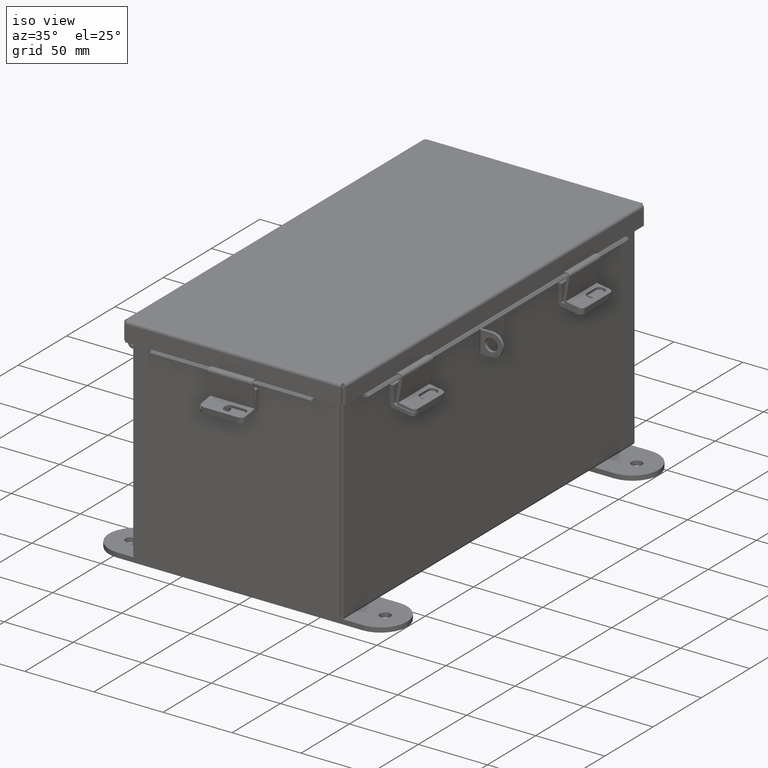
[diagram: clean part render]
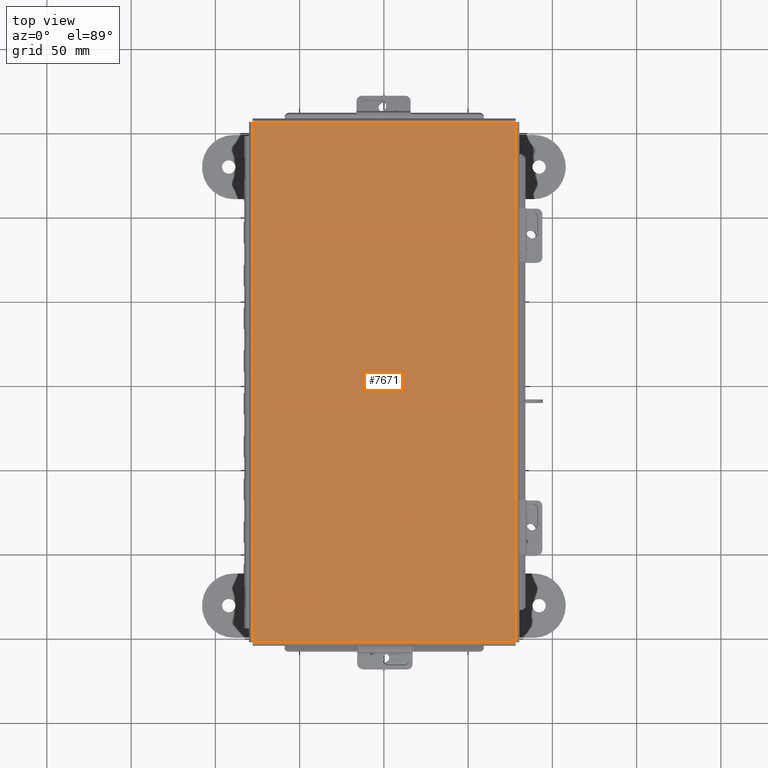
[diagram: tour spotlight — one face highlighted and labeled with its STEP entity id]
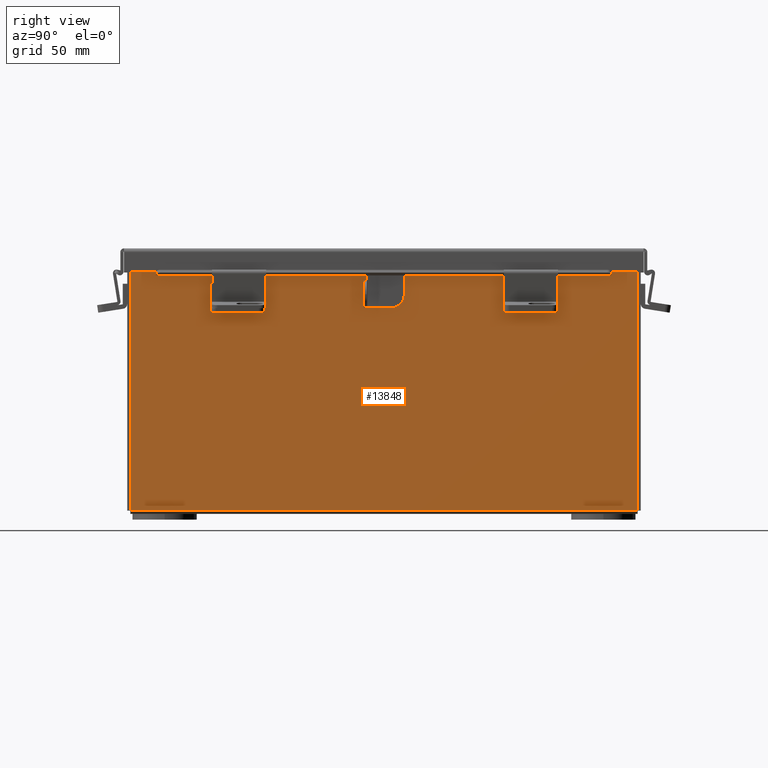
[diagram: tour spotlight — one face highlighted and labeled with its STEP entity id]
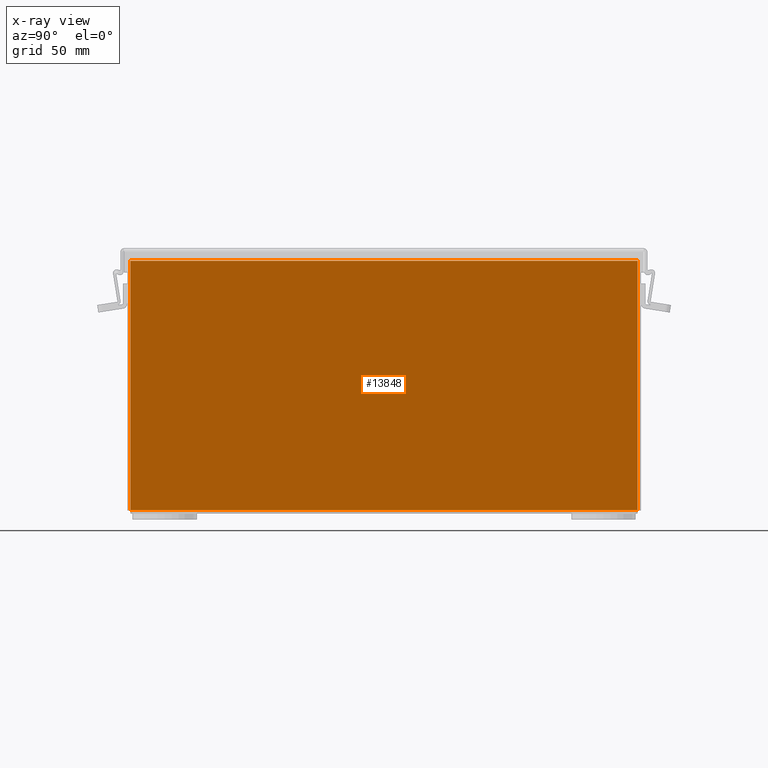
[diagram: x-ray of the same camera — body ghosted, this tour face saturated]
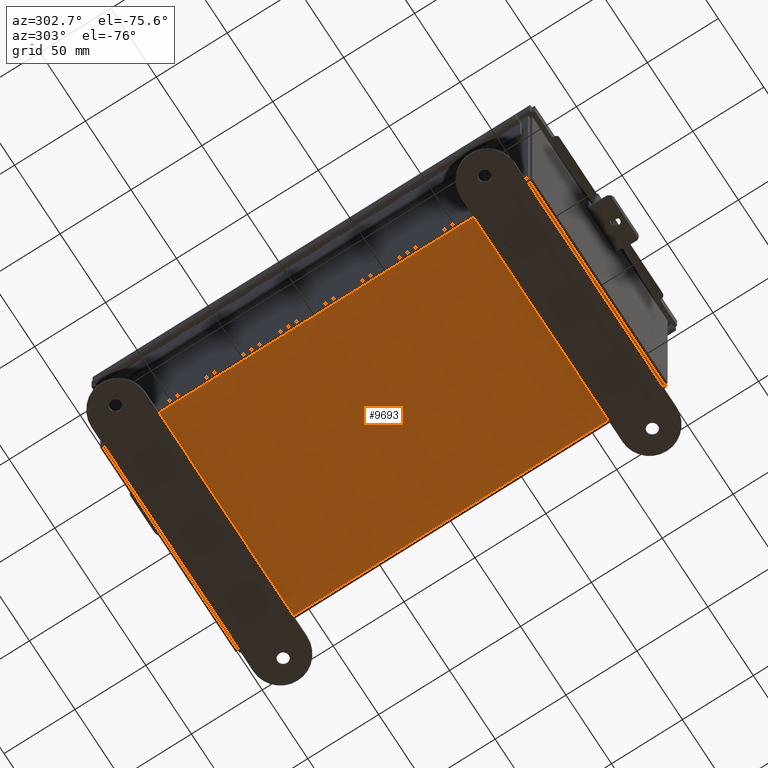
[diagram: tour spotlight — one face highlighted and labeled with its STEP entity id]
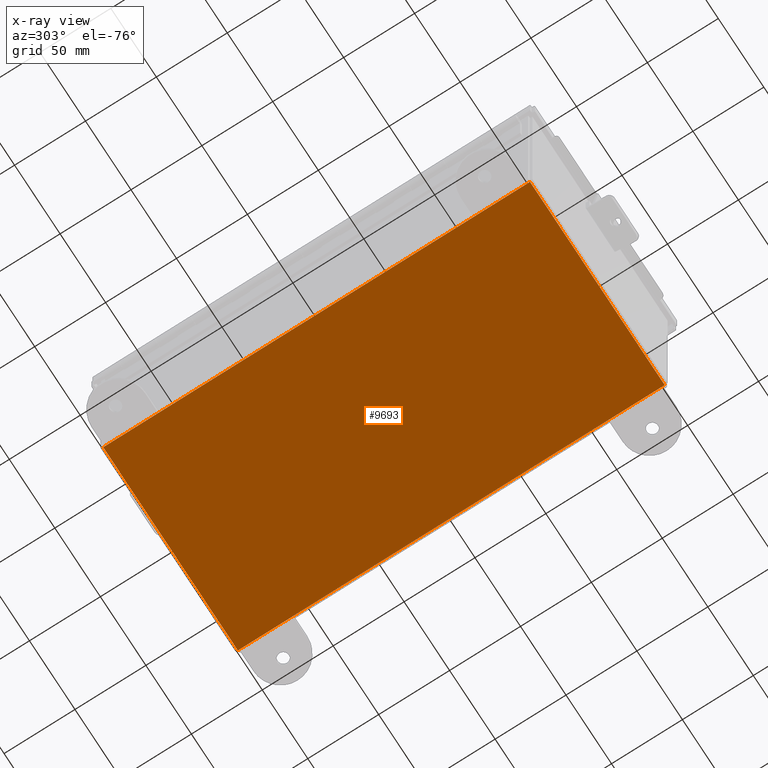
[diagram: x-ray of the same camera — body ghosted, this tour face saturated]
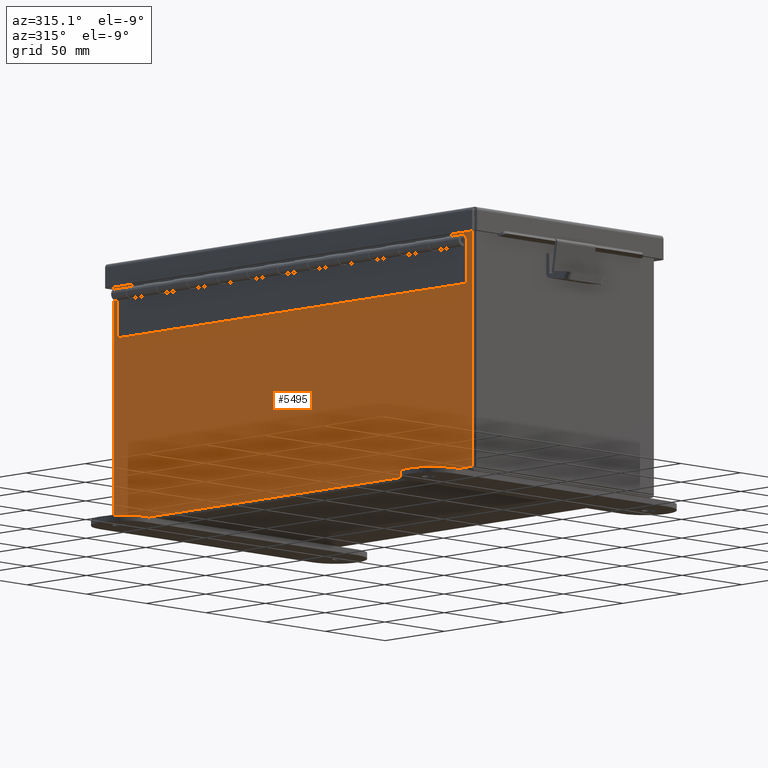
[diagram: tour spotlight — one face highlighted and labeled with its STEP entity id]
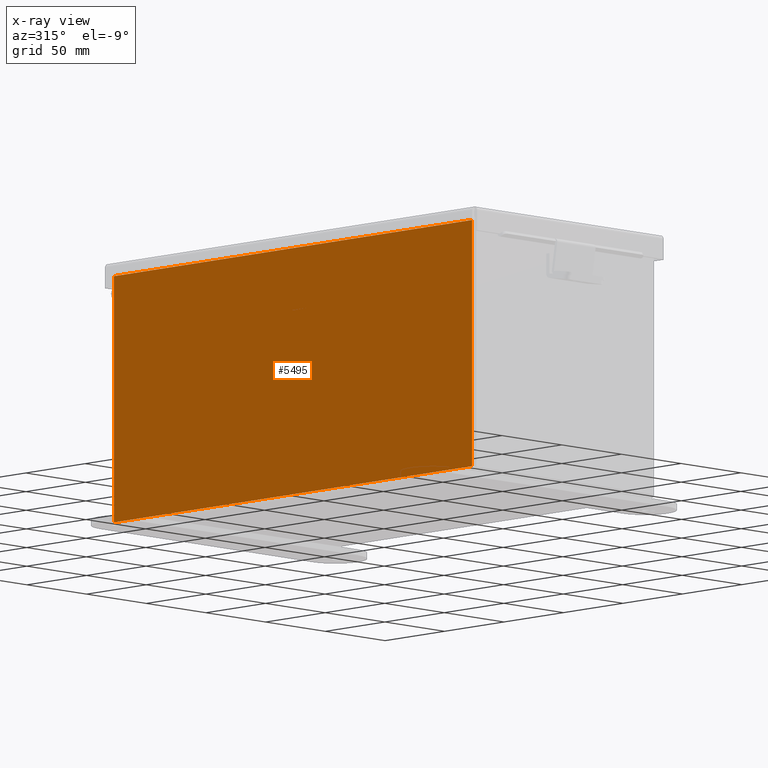
[diagram: x-ray of the same camera — body ghosted, this tour face saturated]
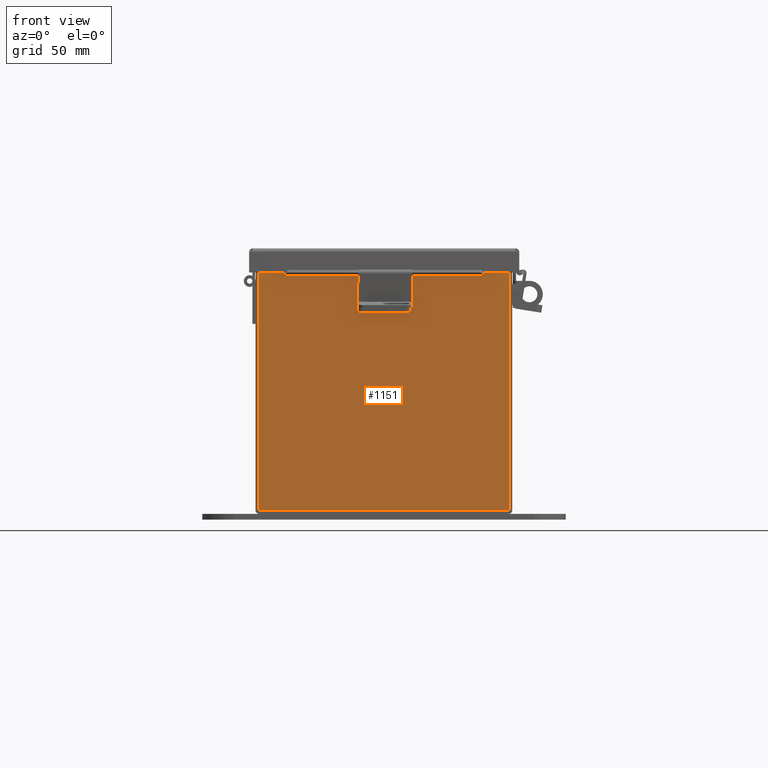
[diagram: tour spotlight — one face highlighted and labeled with its STEP entity id]
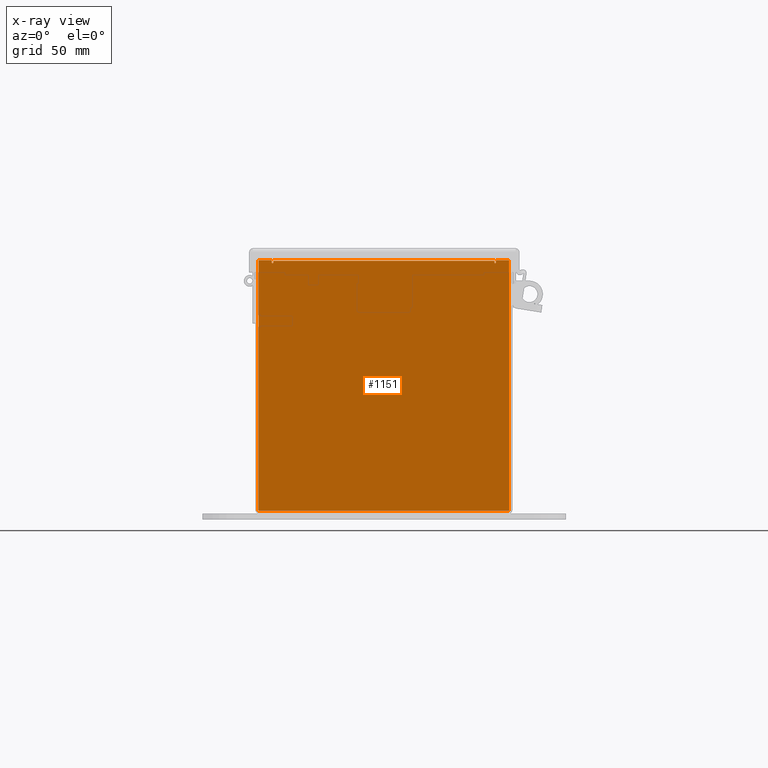
[diagram: x-ray of the same camera — body ghosted, this tour face saturated]
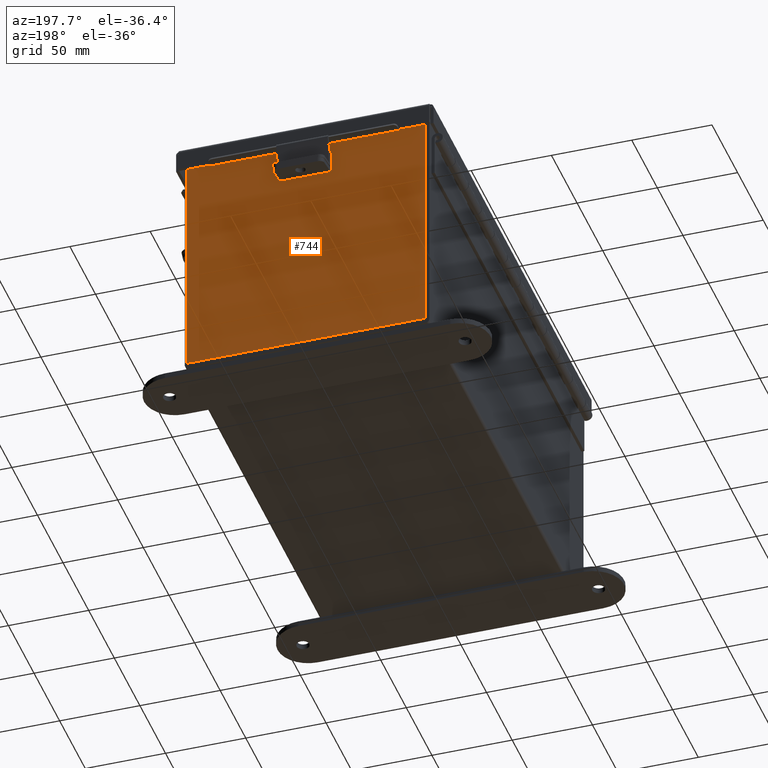
[diagram: tour spotlight — one face highlighted and labeled with its STEP entity id]
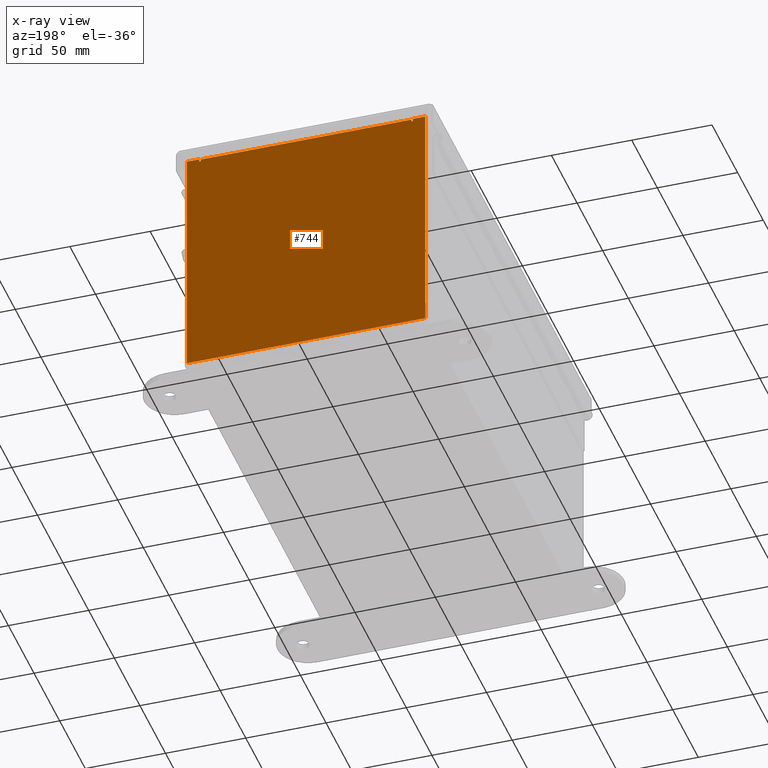
[diagram: x-ray of the same camera — body ghosted, this tour face saturated]
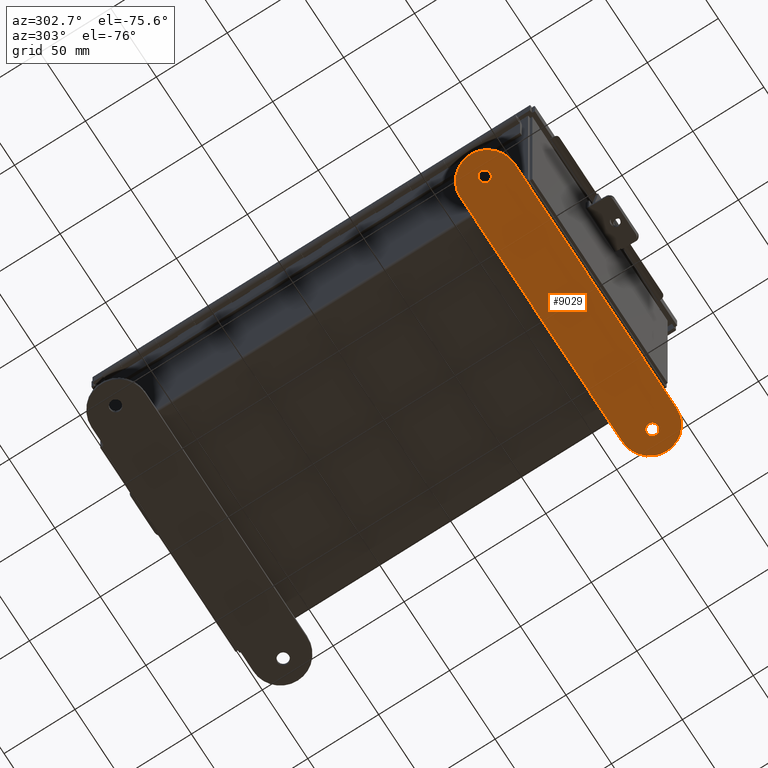
[diagram: tour spotlight — one face highlighted and labeled with its STEP entity id]
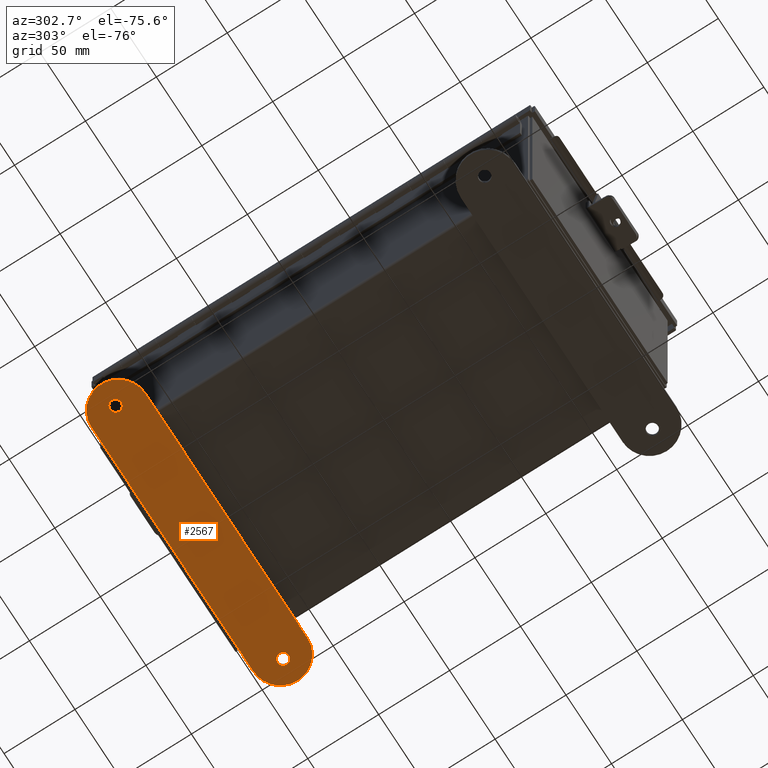
[diagram: tour spotlight — one face highlighted and labeled with its STEP entity id]
A machine part: a face-by-face anatomy tour. The part has 624 B-rep faces; the first image is the clean iso view, then the 8 largest visible faces are spotlighted one at a time (largest first), each with its STEP entity span.

Face 1 — top view, entity #7671. In plain terms, the highlighted planar face has unit normal (-0, -0, 1).
Definition (entity closure, byte-faithful):
#88 = VECTOR ( 'NONE', #4836, 39.37007874015748100 ) ;
#145 = LINE ( 'NONE', #8751, #15312 ) ;
#352 = FACE_OUTER_BOUND ( 'NONE', #9481, .T. ) ;
#463 = VECTOR ( 'NONE', #9300, 39.37007874015748100 ) ;
#794 = CARTESIAN_POINT ( 'NONE',  ( 1.920830620545185200E-017, 0.0000000000000000000, -0.07470000000000015500 ) ) ;
#1762 = PLANE ( 'NONE',  #2698 ) ;
#2108 = CARTESIAN_POINT ( 'NONE',  ( 3.068550000000020100, 6.074478932188135600, -0.07470000000000015500 ) ) ;
#2698 = AXIS2_PLACEMENT_3D ( 'NONE', #794, #5830, #8805 ) ;
#3177 = ORIENTED_EDGE ( 'NONE', *, *, #8562, .T. ) ;
#3400 = EDGE_CURVE ( 'NONE', #8075, #11957, #3712, .T. ) ;
#3712 = LINE ( 'NONE', #2108, #463 ) ;
#4008 = DIRECTION ( 'NONE',  ( 6.697214100988701600E-031, 1.000000000000000000, 3.106139814307734000E-029 ) ) ;
#4836 = DIRECTION ( 'NONE',  ( -1.000000000000000000, -8.669366364039002200E-031, -7.888609052210055000E-031 ) ) ;
#5056 = CARTESIAN_POINT ( 'NONE',  ( -3.068550000000018800, -6.068550000000000100, -0.07470000000000015500 ) ) ;
#5345 = ORIENTED_EDGE ( 'NONE', *, *, #3400, .T. ) ;
#5830 = DIRECTION ( 'NONE',  ( 7.888609052210055000E-031, -3.091348672334815300E-029, -1.000000000000000000 ) ) ;
#5929 = ORIENTED_EDGE ( 'NONE', *, *, #9044, .T. ) ;
#6172 = CARTESIAN_POINT ( 'NONE',  ( -3.074478932188156000, 6.068550000000000100, -0.07470000000000015500 ) ) ;
#6266 = DIRECTION ( 'NONE',  ( 1.000000000000000000, 8.669366364039002200E-031, 7.888609052210055000E-031 ) ) ;
#6812 = ORIENTED_EDGE ( 'NONE', *, *, #13797, .T. ) ;
#7380 = LINE ( 'NONE', #13774, #88 ) ;
#7639 = VERTEX_POINT ( 'NONE', #5056 ) ;
#7671 = ADVANCED_FACE ( 'NONE', ( #352 ), #1762, .T. ) ;
#7797 = CARTESIAN_POINT ( 'NONE',  ( 3.068550000000020100, 6.068550000000000100, -0.07470000000000015500 ) ) ;
#7931 = VERTEX_POINT ( 'NONE', #9531 ) ;
#8075 = VERTEX_POINT ( 'NONE', #7797 ) ;
#8562 = EDGE_CURVE ( 'NONE', #7931, #8075, #14592, .T. ) ;
#8751 = CARTESIAN_POINT ( 'NONE',  ( -3.068550000000018800, -6.074478932188137400, -0.07470000000000015500 ) ) ;
#8805 = DIRECTION ( 'NONE',  ( -1.000000000000000000, -8.669366364039003900E-031, -7.888609052210055000E-031 ) ) ;
#9044 = EDGE_CURVE ( 'NONE', #11957, #7639, #7380, .T. ) ;
#9060 = CARTESIAN_POINT ( 'NONE',  ( 3.068550000000020500, -6.068550000000000100, -0.07470000000000015500 ) ) ;
#9300 = DIRECTION ( 'NONE',  ( -6.697214100988701600E-031, -1.000000000000000000, -3.106139814307734000E-029 ) ) ;
#9481 = EDGE_LOOP ( 'NONE', ( #3177, #5345, #5929, #6812 ) ) ;
#9531 = CARTESIAN_POINT ( 'NONE',  ( -3.068550000000019200, 6.068550000000000100, -0.07470000000000015500 ) ) ;
#11444 = VECTOR ( 'NONE', #6266, 39.37007874015748100 ) ;
#11957 = VERTEX_POINT ( 'NONE', #9060 ) ;
#13774 = CARTESIAN_POINT ( 'NONE',  ( 3.074478932188156900, -6.068550000000000100, -0.07470000000000015500 ) ) ;
#13797 = EDGE_CURVE ( 'NONE', #7639, #7931, #145, .T. ) ;
#14592 = LINE ( 'NONE', #6172, #11444 ) ;
#15312 = VECTOR ( 'NONE', #4008, 39.37007874015748100 ) ;

Face 2 — right view, entity #13848. An x-ray twin of the same camera follows (body ghosted, this face saturated) — the face is partly hidden behind the body. In plain terms, the highlighted planar face has unit normal (-1, 0, 0).
Definition (entity closure, byte-faithful):
#500 = CARTESIAN_POINT ( 'NONE',  ( 3.000000000000018700, 5.925299999999997300, 5.837600000000000100 ) ) ;
#756 = VECTOR ( 'NONE', #6280, 39.37007874015748100 ) ;
#1047 = AXIS2_PLACEMENT_3D ( 'NONE', #2891, #4121, #12479 ) ;
#1886 = DIRECTION ( 'NONE',  ( -1.593066959076850500E-031, -1.000000000000000000, -4.610480471308228800E-017 ) ) ;
#2836 = LINE ( 'NONE', #3128, #12031 ) ;
#2891 = CARTESIAN_POINT ( 'NONE',  ( 2.999999999999999600, 0.0000000000000000000, -1.062859610035002400E-014 ) ) ;
#3128 = CARTESIAN_POINT ( 'NONE',  ( 3.000000000000018700, 5.925299999999998200, 5.837600000000000100 ) ) ;
#3207 = VERTEX_POINT ( 'NONE', #5413 ) ;
#3893 = VERTEX_POINT ( 'NONE', #13418 ) ;
#4121 = DIRECTION ( 'NONE',  ( -1.000000000000000000, 0.0000000000000000000, 3.455316574900958600E-015 ) ) ;
#4945 = CARTESIAN_POINT ( 'NONE',  ( 2.999999999999999600, -5.925300000000000000, 0.01299999999999963700 ) ) ;
#5266 = VERTEX_POINT ( 'NONE', #500 ) ;
#5413 = CARTESIAN_POINT ( 'NONE',  ( 3.000000000000020000, -5.925300000000000000, 5.837600000000000100 ) ) ;
#5654 = VECTOR ( 'NONE', #1886, 39.37007874015748100 ) ;
#6280 = DIRECTION ( 'NONE',  ( -3.455316574900958600E-015, 0.0000000000000000000, -1.000000000000000000 ) ) ;
#6682 = ORIENTED_EDGE ( 'NONE', *, *, #7249, .T. ) ;
#7249 = EDGE_CURVE ( 'NONE', #5266, #3207, #2836, .T. ) ;
#7267 = EDGE_CURVE ( 'NONE', #3893, #15014, #15166, .T. ) ;
#7435 = CARTESIAN_POINT ( 'NONE',  ( 2.999999999999999600, -5.925300000000000000, -1.062859610035002400E-014 ) ) ;
#7891 = CARTESIAN_POINT ( 'NONE',  ( 2.999999999999999600, -5.925300000000000000, 0.01299999999999984300 ) ) ;
#8434 = LINE ( 'NONE', #12896, #14420 ) ;
#8846 = ORIENTED_EDGE ( 'NONE', *, *, #7267, .F. ) ;
#10112 = PLANE ( 'NONE',  #1047 ) ;
#10871 = ORIENTED_EDGE ( 'NONE', *, *, #14105, .T. ) ;
#11035 = EDGE_LOOP ( 'NONE', ( #6682, #14718, #8846, #10871 ) ) ;
#11824 = FACE_OUTER_BOUND ( 'NONE', #11035, .T. ) ;
#12031 = VECTOR ( 'NONE', #13870, 39.37007874015748100 ) ;
#12463 = EDGE_CURVE ( 'NONE', #3207, #15014, #13519, .T. ) ;
#12479 = DIRECTION ( 'NONE',  ( 3.455316574900958600E-015, 0.0000000000000000000, 1.000000000000000000 ) ) ;
#12896 = CARTESIAN_POINT ( 'NONE',  ( 2.999999999999999600, 5.925300000000000000, -9.518782852923917600E-015 ) ) ;
#13418 = CARTESIAN_POINT ( 'NONE',  ( 2.999999999999999600, 5.925299999999998200, 0.01300000000000039000 ) ) ;
#13519 = LINE ( 'NONE', #7435, #756 ) ;
#13848 = ADVANCED_FACE ( 'NONE', ( #11824 ), #10112, .F. ) ;
#13870 = DIRECTION ( 'NONE',  ( -0.0000000000000000000, -1.000000000000000000, -0.0000000000000000000 ) ) ;
#14087 = DIRECTION ( 'NONE',  ( 3.455316574900958600E-015, -1.867738689135653700E-016, 1.000000000000000000 ) ) ;
#14105 = EDGE_CURVE ( 'NONE', #3893, #5266, #8434, .T. ) ;
#14420 = VECTOR ( 'NONE', #14087, 39.37007874015748100 ) ;
#14718 = ORIENTED_EDGE ( 'NONE', *, *, #12463, .T. ) ;
#15014 = VERTEX_POINT ( 'NONE', #4945 ) ;
#15166 = LINE ( 'NONE', #7891, #5654 ) ;

Face 3 — auxiliary view, entity #9693. An x-ray twin of the same camera follows (body ghosted, this face saturated) — the face is partly hidden behind the body. In plain terms, the highlighted planar face has unit normal (0, 0, -1).
Definition (entity closure, byte-faithful):
#335 = CARTESIAN_POINT ( 'NONE',  ( 2.912299999999999200, -5.925300000000000000, -0.07470000000000000300 ) ) ;
#430 = DIRECTION ( 'NONE',  ( -1.000000000000000000, 0.0000000000000000000, -0.0000000000000000000 ) ) ;
#927 = VERTEX_POINT ( 'NONE', #6444 ) ;
#1824 = ORIENTED_EDGE ( 'NONE', *, *, #3911, .F. ) ;
#2106 = DIRECTION ( 'NONE',  ( 0.0000000000000000000, 0.0000000000000000000, -1.000000000000000000 ) ) ;
#2914 = EDGE_LOOP ( 'NONE', ( #13696, #9488, #1824, #13502 ) ) ;
#2961 = CARTESIAN_POINT ( 'NONE',  ( 0.0000000000000000000, 0.0000000000000000000, -0.07470000000000000300 ) ) ;
#3535 = CARTESIAN_POINT ( 'NONE',  ( -2.912300000000000600, -5.925299999999998200, -0.07470000000000071000 ) ) ;
#3814 = DIRECTION ( 'NONE',  ( -0.0000000000000000000, -1.000000000000000000, -8.208677865577646300E-017 ) ) ;
#3911 = EDGE_CURVE ( 'NONE', #5042, #5277, #4066, .T. ) ;
#4066 = LINE ( 'NONE', #4734, #13228 ) ;
#4194 = LINE ( 'NONE', #6628, #7722 ) ;
#4734 = CARTESIAN_POINT ( 'NONE',  ( -3.000000000000000900, -5.925300000000000000, -0.07470000000000000300 ) ) ;
#5042 = VERTEX_POINT ( 'NONE', #3535 ) ;
#5216 = VERTEX_POINT ( 'NONE', #7066 ) ;
#5277 = VERTEX_POINT ( 'NONE', #335 ) ;
#5617 = VECTOR ( 'NONE', #3814, 39.37007874015748100 ) ;
#6444 = CARTESIAN_POINT ( 'NONE',  ( -2.912300000000000600, 5.925300000000000000, -0.07470000000000000300 ) ) ;
#6628 = CARTESIAN_POINT ( 'NONE',  ( -3.000000000000000900, 5.925300000000000000, -0.07470000000000000300 ) ) ;
#7056 = FACE_OUTER_BOUND ( 'NONE', #2914, .T. ) ;
#7066 = CARTESIAN_POINT ( 'NONE',  ( 2.912299999999999200, 5.925299999999997300, -0.07469999999999918400 ) ) ;
#7436 = AXIS2_PLACEMENT_3D ( 'NONE', #2961, #2106, #430 ) ;
#7533 = PLANE ( 'NONE',  #7436 ) ;
#7722 = VECTOR ( 'NONE', #10689, 39.37007874015748100 ) ;
#7910 = CARTESIAN_POINT ( 'NONE',  ( 2.912299999999999200, 5.925300000000000000, -0.07469999999999918400 ) ) ;
#7974 = CARTESIAN_POINT ( 'NONE',  ( -2.912300000000000600, -5.925300000000000000, -0.07470000000000071000 ) ) ;
#7996 = DIRECTION ( 'NONE',  ( -0.0000000000000000000, 1.000000000000000000, 8.208677865577646300E-017 ) ) ;
#8151 = LINE ( 'NONE', #7974, #14137 ) ;
#8789 = LINE ( 'NONE', #7910, #5617 ) ;
#8816 = EDGE_CURVE ( 'NONE', #5216, #5277, #8789, .T. ) ;
#9488 = ORIENTED_EDGE ( 'NONE', *, *, #8816, .T. ) ;
#9693 = ADVANCED_FACE ( 'NONE', ( #7056 ), #7533, .T. ) ;
#10689 = DIRECTION ( 'NONE',  ( -1.000000000000000000, -0.0000000000000000000, -0.0000000000000000000 ) ) ;
#11082 = EDGE_CURVE ( 'NONE', #5042, #927, #8151, .T. ) ;
#12183 = EDGE_CURVE ( 'NONE', #5216, #927, #4194, .T. ) ;
#13123 = DIRECTION ( 'NONE',  ( 1.000000000000000000, 0.0000000000000000000, 0.0000000000000000000 ) ) ;
#13228 = VECTOR ( 'NONE', #13123, 39.37007874015748100 ) ;
#13502 = ORIENTED_EDGE ( 'NONE', *, *, #11082, .T. ) ;
#13696 = ORIENTED_EDGE ( 'NONE', *, *, #12183, .F. ) ;
#14137 = VECTOR ( 'NONE', #7996, 39.37007874015748100 ) ;

Face 4 — auxiliary view, entity #5495. An x-ray twin of the same camera follows (body ghosted, this face saturated) — the face is partly hidden behind the body. In plain terms, the highlighted planar face has unit normal (1, 0, 0).
Definition (entity closure, byte-faithful):
#283 = AXIS2_PLACEMENT_3D ( 'NONE', #1407, #4591, #9851 ) ;
#616 = CARTESIAN_POINT ( 'NONE',  ( -3.000000000000000900, 5.925300000000000000, -1.062859610035002400E-014 ) ) ;
#1009 = VERTEX_POINT ( 'NONE', #11117 ) ;
#1040 = EDGE_LOOP ( 'NONE', ( #7972, #6188, #13054, #3330 ) ) ;
#1100 = EDGE_CURVE ( 'NONE', #1009, #10900, #9626, .T. ) ;
#1407 = CARTESIAN_POINT ( 'NONE',  ( -3.000000000000000900, 0.0000000000000000000, -1.062859610035002400E-014 ) ) ;
#1613 = CARTESIAN_POINT ( 'NONE',  ( -3.000000000000000900, -5.925299999999998200, 0.01299999999999929700 ) ) ;
#1750 = DIRECTION ( 'NONE',  ( 0.0000000000000000000, 1.000000000000000000, 0.0000000000000000000 ) ) ;
#1893 = DIRECTION ( 'NONE',  ( 3.455316574900958600E-015, 0.0000000000000000000, -1.000000000000000000 ) ) ;
#2325 = FACE_OUTER_BOUND ( 'NONE', #1040, .T. ) ;
#2864 = CARTESIAN_POINT ( 'NONE',  ( -3.000000000000000900, 5.925300000000000000, 0.01299999999999984300 ) ) ;
#3330 = ORIENTED_EDGE ( 'NONE', *, *, #9770, .T. ) ;
#3947 = CARTESIAN_POINT ( 'NONE',  ( -3.000000000000020900, 5.925300000000000000, 5.837599999999999200 ) ) ;
#4591 = DIRECTION ( 'NONE',  ( 1.000000000000000000, 0.0000000000000000000, 3.455316574900958600E-015 ) ) ;
#5495 = ADVANCED_FACE ( 'NONE', ( #2325 ), #9587, .F. ) ;
#5550 = LINE ( 'NONE', #8312, #12305 ) ;
#6188 = ORIENTED_EDGE ( 'NONE', *, *, #10325, .T. ) ;
#6222 = LINE ( 'NONE', #2864, #12226 ) ;
#7223 = VECTOR ( 'NONE', #1893, 39.37007874015748100 ) ;
#7972 = ORIENTED_EDGE ( 'NONE', *, *, #1100, .T. ) ;
#8312 = CARTESIAN_POINT ( 'NONE',  ( -3.000000000000000900, -5.925300000000000000, -9.518782852923917600E-015 ) ) ;
#9046 = VECTOR ( 'NONE', #1750, 39.37007874015748100 ) ;
#9367 = CARTESIAN_POINT ( 'NONE',  ( -3.000000000000000900, 5.925300000000000000, 0.01300000000000006500 ) ) ;
#9394 = DIRECTION ( 'NONE',  ( -3.455316574900958600E-015, 1.867738689135653700E-016, 1.000000000000000000 ) ) ;
#9587 = PLANE ( 'NONE',  #283 ) ;
#9626 = LINE ( 'NONE', #11270, #9046 ) ;
#9770 = EDGE_CURVE ( 'NONE', #13816, #1009, #5550, .T. ) ;
#9851 = DIRECTION ( 'NONE',  ( 3.455316574900958600E-015, 0.0000000000000000000, -1.000000000000000000 ) ) ;
#10325 = EDGE_CURVE ( 'NONE', #10900, #11173, #13590, .T. ) ;
#10900 = VERTEX_POINT ( 'NONE', #3947 ) ;
#11117 = CARTESIAN_POINT ( 'NONE',  ( -3.000000000000021800, -5.925299999999997300, 5.837599999999999200 ) ) ;
#11173 = VERTEX_POINT ( 'NONE', #9367 ) ;
#11270 = CARTESIAN_POINT ( 'NONE',  ( -3.000000000000021800, -5.925299999999998200, 5.837599999999999200 ) ) ;
#12226 = VECTOR ( 'NONE', #12824, 39.37007874015748100 ) ;
#12298 = EDGE_CURVE ( 'NONE', #13816, #11173, #6222, .T. ) ;
#12305 = VECTOR ( 'NONE', #9394, 39.37007874015748100 ) ;
#12824 = DIRECTION ( 'NONE',  ( -1.593066959076850500E-031, 1.000000000000000000, 4.610480471308228800E-017 ) ) ;
#13054 = ORIENTED_EDGE ( 'NONE', *, *, #12298, .F. ) ;
#13590 = LINE ( 'NONE', #616, #7223 ) ;
#13816 = VERTEX_POINT ( 'NONE', #1613 ) ;

Face 5 — front view, entity #1151. An x-ray twin of the same camera follows (body ghosted, this face saturated) — the face is partly hidden behind the body. In plain terms, the highlighted planar face has unit normal (-0, 1, -0).
Definition (entity closure, byte-faithful):
#61 = CARTESIAN_POINT ( 'NONE',  ( -2.925300000000008400, 0.0000000000000000000, -2.925300000000000500 ) ) ;
#271 = DIRECTION ( 'NONE',  ( 0.0000000000000000000, 0.0000000000000000000, 1.000000000000000000 ) ) ;
#454 = ORIENTED_EDGE ( 'NONE', *, *, #9184, .T. ) ;
#718 = VECTOR ( 'NONE', #7282, 39.37007874015748100 ) ;
#769 = CARTESIAN_POINT ( 'NONE',  ( 2.619650000000001800, 0.0000000000000000000, 2.925299999999999600 ) ) ;
#809 = VERTEX_POINT ( 'NONE', #3852 ) ;
#1151 = ADVANCED_FACE ( 'NONE', ( #12037 ), #15282, .F. ) ;
#1405 = CARTESIAN_POINT ( 'NONE',  ( -2.582299999999998300, 1.092739197465705300E-015, 2.912300000000000600 ) ) ;
#1591 = VERTEX_POINT ( 'NONE', #12738 ) ;
#1754 = LINE ( 'NONE', #6164, #14146 ) ;
#1790 = CARTESIAN_POINT ( 'NONE',  ( -2.582299999999998300, 0.0000000000000000000, 0.0000000000000000000 ) ) ;
#2175 = DIRECTION ( 'NONE',  ( 1.000000000000000000, 1.107301242518083700E-030, 0.0000000000000000000 ) ) ;
#2445 = VERTEX_POINT ( 'NONE', #769 ) ;
#2575 = ORIENTED_EDGE ( 'NONE', *, *, #15212, .F. ) ;
#2626 = VECTOR ( 'NONE', #14962, 39.37007874015748100 ) ;
#2670 = EDGE_CURVE ( 'NONE', #2445, #13265, #5194, .T. ) ;
#2774 = AXIS2_PLACEMENT_3D ( 'NONE', #15380, #7162, #5509 ) ;
#3022 = LINE ( 'NONE', #1790, #12202 ) ;
#3059 = DIRECTION ( 'NONE',  ( 1.107301242518083700E-030, 1.000000000000000000, -0.0000000000000000000 ) ) ;
#3155 = CARTESIAN_POINT ( 'NONE',  ( 2.925299999999992000, 0.0000000000000000000, -2.925300000000010700 ) ) ;
#3213 = LINE ( 'NONE', #6337, #718 ) ;
#3258 = EDGE_CURVE ( 'NONE', #6022, #4025, #6314, .T. ) ;
#3852 = CARTESIAN_POINT ( 'NONE',  ( -2.925299999999998200, 0.0000000000000000000, 2.925300000000001800 ) ) ;
#3989 = VECTOR ( 'NONE', #271, 39.37007874015748100 ) ;
#4025 = VERTEX_POINT ( 'NONE', #6608 ) ;
#4250 = ORIENTED_EDGE ( 'NONE', *, *, #13259, .F. ) ;
#4268 = EDGE_CURVE ( 'NONE', #11582, #4025, #15044, .T. ) ;
#4341 = CARTESIAN_POINT ( 'NONE',  ( 2.600975000000001800, 0.0000000000000000000, 2.874949999999998300 ) ) ;
#4358 = ORIENTED_EDGE ( 'NONE', *, *, #4561, .T. ) ;
#4561 = EDGE_CURVE ( 'NONE', #809, #14858, #1754, .T. ) ;
#4674 = CIRCLE ( 'NONE', #4754, 0.01867500000000003900 ) ;
#4719 = LINE ( 'NONE', #14631, #3989 ) ;
#4754 = AXIS2_PLACEMENT_3D ( 'NONE', #10262, #3059, #11440 ) ;
#5194 = LINE ( 'NONE', #9371, #8755 ) ;
#5509 = DIRECTION ( 'NONE',  ( 0.0000000000000000000, 0.0000000000000000000, -1.000000000000000000 ) ) ;
#5531 = DIRECTION ( 'NONE',  ( 0.0000000000000000000, 0.0000000000000000000, -1.000000000000000000 ) ) ;
#5571 = VERTEX_POINT ( 'NONE', #5747 ) ;
#5668 = VECTOR ( 'NONE', #13729, 39.37007874015748100 ) ;
#5747 = CARTESIAN_POINT ( 'NONE',  ( -2.619649999999998300, 0.0000000000000000000, 2.874949999999999200 ) ) ;
#6022 = VERTEX_POINT ( 'NONE', #8656 ) ;
#6164 = CARTESIAN_POINT ( 'NONE',  ( -2.925299999999998200, 0.0000000000000000000, 2.925300000000001800 ) ) ;
#6220 = EDGE_LOOP ( 'NONE', ( #14356, #11853, #4250, #9734, #12129, #2575, #14051, #10269, #454, #14940, #14593, #4358 ) ) ;
#6314 = LINE ( 'NONE', #15279, #14367 ) ;
#6337 = CARTESIAN_POINT ( 'NONE',  ( -2.925299999999998200, 0.0000000000000000000, 2.925300000000001800 ) ) ;
#6608 = CARTESIAN_POINT ( 'NONE',  ( 2.582300000000001400, 0.0000000000000000000, 2.912299999999997400 ) ) ;
#6617 = CARTESIAN_POINT ( 'NONE',  ( 2.925300000000001800, 0.0000000000000000000, 2.925299999999998200 ) ) ;
#6759 = EDGE_CURVE ( 'NONE', #14697, #12474, #14815, .T. ) ;
#7162 = DIRECTION ( 'NONE',  ( -1.107301242518083700E-030, -1.000000000000000000, -0.0000000000000000000 ) ) ;
#7228 = CARTESIAN_POINT ( 'NONE',  ( -2.582299999999998300, 1.092739197465705300E-015, 2.912300000000000600 ) ) ;
#7282 = DIRECTION ( 'NONE',  ( 0.0000000000000000000, 0.0000000000000000000, 1.000000000000000000 ) ) ;
#7488 = CARTESIAN_POINT ( 'NONE',  ( -2.925300000000008400, 0.0000000000000000000, -2.925300000000000500 ) ) ;
#7810 = VECTOR ( 'NONE', #13195, 39.37007874015748100 ) ;
#8249 = EDGE_CURVE ( 'NONE', #12474, #809, #3213, .T. ) ;
#8350 = VECTOR ( 'NONE', #12280, 39.37007874015748100 ) ;
#8399 = CARTESIAN_POINT ( 'NONE',  ( 2.925300000000001800, 0.0000000000000000000, 2.925299999999998200 ) ) ;
#8656 = CARTESIAN_POINT ( 'NONE',  ( 2.582300000000001400, 0.0000000000000000000, 2.874949999999998300 ) ) ;
#8755 = VECTOR ( 'NONE', #2175, 39.37007874015748100 ) ;
#9010 = LINE ( 'NONE', #13783, #2626 ) ;
#9184 = EDGE_CURVE ( 'NONE', #13265, #14697, #14552, .T. ) ;
#9371 = CARTESIAN_POINT ( 'NONE',  ( -2.925299999999998200, 0.0000000000000000000, 2.925300000000001800 ) ) ;
#9734 = ORIENTED_EDGE ( 'NONE', *, *, #4268, .T. ) ;
#9755 = DIRECTION ( 'NONE',  ( 1.000000000000000000, 1.107301242518083700E-030, 0.0000000000000000000 ) ) ;
#10262 = CARTESIAN_POINT ( 'NONE',  ( -2.600974999999998300, 0.0000000000000000000, 2.874950000000001400 ) ) ;
#10269 = ORIENTED_EDGE ( 'NONE', *, *, #2670, .T. ) ;
#10654 = DIRECTION ( 'NONE',  ( 0.0000000000000000000, 0.0000000000000000000, 1.000000000000000000 ) ) ;
#10705 = CARTESIAN_POINT ( 'NONE',  ( -2.619649999999998300, 0.0000000000000000000, 2.925299999999998200 ) ) ;
#11063 = VERTEX_POINT ( 'NONE', #13218 ) ;
#11408 = DIRECTION ( 'NONE',  ( 0.0000000000000000000, 0.0000000000000000000, -1.000000000000000000 ) ) ;
#11440 = DIRECTION ( 'NONE',  ( 0.0000000000000000000, 0.0000000000000000000, -1.000000000000000000 ) ) ;
#11582 = VERTEX_POINT ( 'NONE', #7228 ) ;
#11853 = ORIENTED_EDGE ( 'NONE', *, *, #13917, .F. ) ;
#12037 = FACE_OUTER_BOUND ( 'NONE', #6220, .T. ) ;
#12129 = ORIENTED_EDGE ( 'NONE', *, *, #3258, .F. ) ;
#12202 = VECTOR ( 'NONE', #11408, 39.37007874015748100 ) ;
#12280 = DIRECTION ( 'NONE',  ( 1.000000000000000000, 1.107301242518083700E-030, -0.0000000000000000000 ) ) ;
#12464 = EDGE_CURVE ( 'NONE', #5571, #14858, #4719, .T. ) ;
#12474 = VERTEX_POINT ( 'NONE', #7488 ) ;
#12709 = DIRECTION ( 'NONE',  ( 1.107301242518083700E-030, 1.000000000000000000, -0.0000000000000000000 ) ) ;
#12738 = CARTESIAN_POINT ( 'NONE',  ( -2.582299999999998300, 0.0000000000000000000, 2.874950000000001400 ) ) ;
#13133 = AXIS2_PLACEMENT_3D ( 'NONE', #4341, #12709, #5531 ) ;
#13195 = DIRECTION ( 'NONE',  ( 0.0000000000000000000, 0.0000000000000000000, -1.000000000000000000 ) ) ;
#13218 = CARTESIAN_POINT ( 'NONE',  ( 2.619650000000001800, 0.0000000000000000000, 2.874949999999998300 ) ) ;
#13259 = EDGE_CURVE ( 'NONE', #11582, #1591, #3022, .T. ) ;
#13263 = EDGE_CURVE ( 'NONE', #2445, #11063, #9010, .T. ) ;
#13265 = VERTEX_POINT ( 'NONE', #6617 ) ;
#13632 = CIRCLE ( 'NONE', #13133, 0.01867500000000003900 ) ;
#13729 = DIRECTION ( 'NONE',  ( -1.000000000000000000, -1.107301242518083700E-030, 0.0000000000000000000 ) ) ;
#13783 = CARTESIAN_POINT ( 'NONE',  ( 2.619649999999970700, 0.0000000000000000000, -2.895758873284118700E-014 ) ) ;
#13917 = EDGE_CURVE ( 'NONE', #1591, #5571, #4674, .T. ) ;
#14051 = ORIENTED_EDGE ( 'NONE', *, *, #13263, .F. ) ;
#14146 = VECTOR ( 'NONE', #9755, 39.37007874015748100 ) ;
#14356 = ORIENTED_EDGE ( 'NONE', *, *, #12464, .F. ) ;
#14367 = VECTOR ( 'NONE', #10654, 39.37007874015748100 ) ;
#14552 = LINE ( 'NONE', #8399, #7810 ) ;
#14593 = ORIENTED_EDGE ( 'NONE', *, *, #8249, .T. ) ;
#14631 = CARTESIAN_POINT ( 'NONE',  ( -2.619649999999998300, 0.0000000000000000000, -9.834652777191348400E-015 ) ) ;
#14697 = VERTEX_POINT ( 'NONE', #3155 ) ;
#14815 = LINE ( 'NONE', #61, #5668 ) ;
#14858 = VERTEX_POINT ( 'NONE', #10705 ) ;
#14940 = ORIENTED_EDGE ( 'NONE', *, *, #6759, .T. ) ;
#14962 = DIRECTION ( 'NONE',  ( -1.085143195099989400E-014, 0.0000000000000000000, -1.000000000000000000 ) ) ;
#15044 = LINE ( 'NONE', #1405, #8350 ) ;
#15212 = EDGE_CURVE ( 'NONE', #11063, #6022, #13632, .T. ) ;
#15279 = CARTESIAN_POINT ( 'NONE',  ( 2.582300000000001400, 0.0000000000000000000, -9.834652777191348400E-015 ) ) ;
#15282 = PLANE ( 'NONE',  #2774 ) ;
#15380 = CARTESIAN_POINT ( 'NONE',  ( 0.0000000000000000000, 0.0000000000000000000, 0.0000000000000000000 ) ) ;

Face 6 — auxiliary view, entity #744. An x-ray twin of the same camera follows (body ghosted, this face saturated) — the face is partly hidden behind the body. In plain terms, the highlighted planar face has unit normal (0, -1, 0).
Definition (entity closure, byte-faithful):
#6 = ORIENTED_EDGE ( 'NONE', *, *, #3725, .F. ) ;
#120 = FACE_OUTER_BOUND ( 'NONE', #6726, .T. ) ;
#211 = CARTESIAN_POINT ( 'NONE',  ( 0.0000000000000000000, 0.0000000000000000000, 0.0000000000000000000 ) ) ;
#422 = LINE ( 'NONE', #10259, #13946 ) ;
#498 = DIRECTION ( 'NONE',  ( -0.0000000000000000000, 1.000000000000000000, -0.0000000000000000000 ) ) ;
#534 = EDGE_CURVE ( 'NONE', #8991, #815, #11712, .T. ) ;
#637 = CARTESIAN_POINT ( 'NONE',  ( -2.600974999999999600, 0.0000000000000000000, 2.874949999999998800 ) ) ;
#744 = ADVANCED_FACE ( 'NONE', ( #120 ), #2687, .F. ) ;
#815 = VERTEX_POINT ( 'NONE', #6889 ) ;
#1360 = ORIENTED_EDGE ( 'NONE', *, *, #9925, .F. ) ;
#1513 = CARTESIAN_POINT ( 'NONE',  ( -2.582299999999999600, 0.0000000000000000000, 0.0000000000000000000 ) ) ;
#1968 = DIRECTION ( 'NONE',  ( -0.0000000000000000000, -0.0000000000000000000, 1.000000000000000000 ) ) ;
#2048 = EDGE_CURVE ( 'NONE', #11245, #2653, #5973, .T. ) ;
#2301 = VECTOR ( 'NONE', #7666, 39.37007874015748100 ) ;
#2343 = LINE ( 'NONE', #4615, #8356 ) ;
#2595 = ORIENTED_EDGE ( 'NONE', *, *, #7041, .F. ) ;
#2653 = VERTEX_POINT ( 'NONE', #12965 ) ;
#2687 = PLANE ( 'NONE',  #9804 ) ;
#2932 = CARTESIAN_POINT ( 'NONE',  ( -2.925299999999999600, 0.0000000000000000000, 2.925300000000000000 ) ) ;
#3149 = ORIENTED_EDGE ( 'NONE', *, *, #2048, .F. ) ;
#3274 = LINE ( 'NONE', #5350, #6063 ) ;
#3518 = VERTEX_POINT ( 'NONE', #5573 ) ;
#3585 = CARTESIAN_POINT ( 'NONE',  ( -2.925299999999999600, 0.0000000000000000000, -2.925300000000000000 ) ) ;
#3725 = EDGE_CURVE ( 'NONE', #9038, #14711, #11928, .T. ) ;
#3821 = EDGE_CURVE ( 'NONE', #9038, #6729, #7988, .T. ) ;
#3909 = DIRECTION ( 'NONE',  ( -0.0000000000000000000, 1.000000000000000000, -0.0000000000000000000 ) ) ;
#3912 = VECTOR ( 'NONE', #6053, 39.37007874015748100 ) ;
#4416 = DIRECTION ( 'NONE',  ( 0.0000000000000000000, 0.0000000000000000000, -1.000000000000000000 ) ) ;
#4615 = CARTESIAN_POINT ( 'NONE',  ( -2.582299999999999600, 1.092739197465705300E-015, 2.912300000000000100 ) ) ;
#5146 = DIRECTION ( 'NONE',  ( 1.000000000000000000, 0.0000000000000000000, 0.0000000000000000000 ) ) ;
#5257 = DIRECTION ( 'NONE',  ( 0.0000000000000000000, -1.000000000000000000, 0.0000000000000000000 ) ) ;
#5350 = CARTESIAN_POINT ( 'NONE',  ( -2.925299999999999600, 0.0000000000000000000, -2.925300000000000000 ) ) ;
#5463 = DIRECTION ( 'NONE',  ( 1.000000000000000000, 0.0000000000000000000, 0.0000000000000000000 ) ) ;
#5573 = CARTESIAN_POINT ( 'NONE',  ( 2.925300000000000500, 0.0000000000000000000, -2.925300000000000000 ) ) ;
#5616 = DIRECTION ( 'NONE',  ( -1.000000000000000000, -0.0000000000000000000, -0.0000000000000000000 ) ) ;
#5703 = EDGE_CURVE ( 'NONE', #14261, #8991, #422, .T. ) ;
#5973 = CIRCLE ( 'NONE', #7409, 0.01867500000000003900 ) ;
#6053 = DIRECTION ( 'NONE',  ( 0.0000000000000000000, 0.0000000000000000000, -1.000000000000000000 ) ) ;
#6063 = VECTOR ( 'NONE', #5616, 39.37007874015748100 ) ;
#6228 = EDGE_CURVE ( 'NONE', #3518, #14261, #3274, .T. ) ;
#6726 = EDGE_LOOP ( 'NONE', ( #12598, #3149, #1360, #8946, #2595, #11750, #6, #8850, #15077, #13014, #10814, #7128 ) ) ;
#6729 = VERTEX_POINT ( 'NONE', #7929 ) ;
#6889 = CARTESIAN_POINT ( 'NONE',  ( -2.619649999999999600, 0.0000000000000000000, 2.925300000000000000 ) ) ;
#7041 = EDGE_CURVE ( 'NONE', #8298, #7330, #14282, .T. ) ;
#7128 = ORIENTED_EDGE ( 'NONE', *, *, #534, .T. ) ;
#7330 = VERTEX_POINT ( 'NONE', #14293 ) ;
#7409 = AXIS2_PLACEMENT_3D ( 'NONE', #637, #498, #13277 ) ;
#7571 = CARTESIAN_POINT ( 'NONE',  ( 2.619649999999969400, 0.0000000000000000000, -2.841121913410833900E-014 ) ) ;
#7666 = DIRECTION ( 'NONE',  ( 1.000000000000000000, 0.0000000000000000000, 0.0000000000000000000 ) ) ;
#7692 = DIRECTION ( 'NONE',  ( 0.0000000000000000000, 0.0000000000000000000, 1.000000000000000000 ) ) ;
#7929 = CARTESIAN_POINT ( 'NONE',  ( 2.925300000000000500, 0.0000000000000000000, 2.925300000000000000 ) ) ;
#7988 = LINE ( 'NONE', #8760, #14353 ) ;
#8247 = CARTESIAN_POINT ( 'NONE',  ( -2.619649999999999600, 0.0000000000000000000, 0.0000000000000000000 ) ) ;
#8298 = VERTEX_POINT ( 'NONE', #11422 ) ;
#8356 = VECTOR ( 'NONE', #5463, 39.37007874015748100 ) ;
#8760 = CARTESIAN_POINT ( 'NONE',  ( -2.925299999999999600, 0.0000000000000000000, 2.925300000000000000 ) ) ;
#8850 = ORIENTED_EDGE ( 'NONE', *, *, #3821, .T. ) ;
#8866 = CARTESIAN_POINT ( 'NONE',  ( -2.925299999999999600, 0.0000000000000000000, 2.925300000000000000 ) ) ;
#8946 = ORIENTED_EDGE ( 'NONE', *, *, #10226, .T. ) ;
#8972 = EDGE_CURVE ( 'NONE', #2653, #815, #10156, .T. ) ;
#8991 = VERTEX_POINT ( 'NONE', #2932 ) ;
#9015 = EDGE_CURVE ( 'NONE', #14711, #8298, #12927, .T. ) ;
#9038 = VERTEX_POINT ( 'NONE', #13615 ) ;
#9115 = VECTOR ( 'NONE', #13523, 39.37007874015748100 ) ;
#9362 = AXIS2_PLACEMENT_3D ( 'NONE', #10032, #3909, #4416 ) ;
#9698 = LINE ( 'NONE', #1513, #12486 ) ;
#9804 = AXIS2_PLACEMENT_3D ( 'NONE', #211, #5257, #12561 ) ;
#9925 = EDGE_CURVE ( 'NONE', #15070, #11245, #9698, .T. ) ;
#10032 = CARTESIAN_POINT ( 'NONE',  ( 2.600975000000000500, 0.0000000000000000000, 2.874949999999998800 ) ) ;
#10156 = LINE ( 'NONE', #8247, #10529 ) ;
#10226 = EDGE_CURVE ( 'NONE', #15070, #7330, #2343, .T. ) ;
#10259 = CARTESIAN_POINT ( 'NONE',  ( -2.925299999999999600, 0.0000000000000000000, 2.925300000000000000 ) ) ;
#10436 = DIRECTION ( 'NONE',  ( 0.0000000000000000000, 0.0000000000000000000, -1.000000000000000000 ) ) ;
#10529 = VECTOR ( 'NONE', #7692, 39.37007874015748100 ) ;
#10814 = ORIENTED_EDGE ( 'NONE', *, *, #5703, .T. ) ;
#11120 = VECTOR ( 'NONE', #14462, 39.37007874015748100 ) ;
#11156 = CARTESIAN_POINT ( 'NONE',  ( 2.582300000000000500, 0.0000000000000000000, 0.0000000000000000000 ) ) ;
#11245 = VERTEX_POINT ( 'NONE', #13935 ) ;
#11308 = CARTESIAN_POINT ( 'NONE',  ( -2.582299999999999600, 1.092739197465705300E-015, 2.912300000000000100 ) ) ;
#11422 = CARTESIAN_POINT ( 'NONE',  ( 2.582300000000000500, 0.0000000000000000000, 2.874949999999998800 ) ) ;
#11712 = LINE ( 'NONE', #8866, #2301 ) ;
#11750 = ORIENTED_EDGE ( 'NONE', *, *, #9015, .F. ) ;
#11928 = LINE ( 'NONE', #7571, #9115 ) ;
#12486 = VECTOR ( 'NONE', #10436, 39.37007874015748100 ) ;
#12561 = DIRECTION ( 'NONE',  ( 0.0000000000000000000, -0.0000000000000000000, -1.000000000000000000 ) ) ;
#12598 = ORIENTED_EDGE ( 'NONE', *, *, #8972, .F. ) ;
#12927 = CIRCLE ( 'NONE', #9362, 0.01867500000000003900 ) ;
#12965 = CARTESIAN_POINT ( 'NONE',  ( -2.619649999999999600, 0.0000000000000000000, 2.874949999999998800 ) ) ;
#13014 = ORIENTED_EDGE ( 'NONE', *, *, #6228, .T. ) ;
#13090 = LINE ( 'NONE', #13231, #3912 ) ;
#13231 = CARTESIAN_POINT ( 'NONE',  ( 2.925300000000000500, 0.0000000000000000000, 2.925300000000000000 ) ) ;
#13277 = DIRECTION ( 'NONE',  ( 0.0000000000000000000, 0.0000000000000000000, -1.000000000000000000 ) ) ;
#13523 = DIRECTION ( 'NONE',  ( -1.085143195099989400E-014, 0.0000000000000000000, -1.000000000000000000 ) ) ;
#13615 = CARTESIAN_POINT ( 'NONE',  ( 2.619650000000000500, 0.0000000000000000000, 2.925300000000000000 ) ) ;
#13935 = CARTESIAN_POINT ( 'NONE',  ( -2.582299999999999600, 0.0000000000000000000, 2.874949999999998800 ) ) ;
#13946 = VECTOR ( 'NONE', #1968, 39.37007874015748100 ) ;
#14261 = VERTEX_POINT ( 'NONE', #3585 ) ;
#14282 = LINE ( 'NONE', #11156, #11120 ) ;
#14293 = CARTESIAN_POINT ( 'NONE',  ( 2.582300000000000500, 0.0000000000000000000, 2.912300000000000100 ) ) ;
#14353 = VECTOR ( 'NONE', #5146, 39.37007874015748100 ) ;
#14462 = DIRECTION ( 'NONE',  ( 0.0000000000000000000, 0.0000000000000000000, 1.000000000000000000 ) ) ;
#14711 = VERTEX_POINT ( 'NONE', #15082 ) ;
#14957 = EDGE_CURVE ( 'NONE', #6729, #3518, #13090, .T. ) ;
#15070 = VERTEX_POINT ( 'NONE', #11308 ) ;
#15077 = ORIENTED_EDGE ( 'NONE', *, *, #14957, .T. ) ;
#15082 = CARTESIAN_POINT ( 'NONE',  ( 2.619650000000000500, 0.0000000000000000000, 2.874949999999998800 ) ) ;

Face 7 — auxiliary view, entity #9029. In plain terms, the highlighted planar face has unit normal (0, 0, -1).
Definition (entity closure, byte-faithful):
#107 = ORIENTED_EDGE ( 'NONE', *, *, #12834, .F. ) ;
#386 = VERTEX_POINT ( 'NONE', #5955 ) ;
#1438 = CIRCLE ( 'NONE', #14520, 0.1564999999999992800 ) ;
#1494 = FACE_BOUND ( 'NONE', #15095, .T. ) ;
#1907 = EDGE_CURVE ( 'NONE', #3427, #386, #1438, .T. ) ;
#2005 = ORIENTED_EDGE ( 'NONE', *, *, #13200, .F. ) ;
#2046 = CARTESIAN_POINT ( 'NONE',  ( -3.499999999999998700, -0.3379059350503871900, -0.1345000000000000100 ) ) ;
#2096 = CIRCLE ( 'NONE', #9173, 0.1564999999999992800 ) ;
#2101 = VERTEX_POINT ( 'NONE', #12312 ) ;
#2604 = EDGE_CURVE ( 'NONE', #14169, #2101, #6327, .T. ) ;
#2925 = CIRCLE ( 'NONE', #3003, 0.7500000000000010000 ) ;
#2936 = DIRECTION ( 'NONE',  ( -0.0000000000000000000, -0.0000000000000000000, 1.000000000000000000 ) ) ;
#2996 = FACE_BOUND ( 'NONE', #7477, .T. ) ;
#3003 = AXIS2_PLACEMENT_3D ( 'NONE', #12636, #13829, #3148 ) ;
#3005 = CARTESIAN_POINT ( 'NONE',  ( 4.250000000000000900, 0.4120940649496122000, -0.1345000000000000100 ) ) ;
#3148 = DIRECTION ( 'NONE',  ( -1.000000000000000000, 0.0000000000000000000, 0.0000000000000000000 ) ) ;
#3348 = ORIENTED_EDGE ( 'NONE', *, *, #11811, .F. ) ;
#3427 = VERTEX_POINT ( 'NONE', #14046 ) ;
#3952 = EDGE_CURVE ( 'NONE', #7018, #13934, #2925, .T. ) ;
#3987 = ORIENTED_EDGE ( 'NONE', *, *, #12572, .T. ) ;
#4009 = ORIENTED_EDGE ( 'NONE', *, *, #13767, .F. ) ;
#4136 = AXIS2_PLACEMENT_3D ( 'NONE', #4787, #6526, #7239 ) ;
#4137 = CARTESIAN_POINT ( 'NONE',  ( 3.500000000000000000, 0.4120940649496122000, -0.1345000000000000100 ) ) ;
#4172 = CARTESIAN_POINT ( 'NONE',  ( -3.625000000000000400, 0.4120940649496089300, -0.1345000000000000100 ) ) ;
#4277 = EDGE_LOOP ( 'NONE', ( #13088, #14742, #3348, #107, #2005 ) ) ;
#4730 = LINE ( 'NONE', #11085, #13533 ) ;
#4787 = CARTESIAN_POINT ( 'NONE',  ( 3.500000000000000000, 0.4120940649496122000, -0.1345000000000000100 ) ) ;
#5311 = DIRECTION ( 'NONE',  ( -1.000000000000000000, 0.0000000000000000000, 0.0000000000000000000 ) ) ;
#5459 = AXIS2_PLACEMENT_3D ( 'NONE', #7783, #9640, #5502 ) ;
#5502 = DIRECTION ( 'NONE',  ( 1.000000000000000000, 0.0000000000000000000, 0.0000000000000000000 ) ) ;
#5821 = CARTESIAN_POINT ( 'NONE',  ( 3.468500000000001000, 0.4120940649496089300, -0.1345000000000000100 ) ) ;
#5955 = CARTESIAN_POINT ( 'NONE',  ( -3.781499999999999400, 0.4120940649496089300, -0.1345000000000000100 ) ) ;
#6295 = DIRECTION ( 'NONE',  ( 0.0000000000000000000, 0.0000000000000000000, -1.000000000000000000 ) ) ;
#6327 = CIRCLE ( 'NONE', #9094, 0.1564999999999992800 ) ;
#6526 = DIRECTION ( 'NONE',  ( 0.0000000000000000000, 0.0000000000000000000, -1.000000000000000000 ) ) ;
#6618 = EDGE_CURVE ( 'NONE', #11929, #7018, #4730, .T. ) ;
#6659 = AXIS2_PLACEMENT_3D ( 'NONE', #13458, #6295, #14641 ) ;
#6747 = VERTEX_POINT ( 'NONE', #11130 ) ;
#6908 = CARTESIAN_POINT ( 'NONE',  ( -3.499999999999998700, 1.162094064949612800, -0.1345000000000000100 ) ) ;
#7018 = VERTEX_POINT ( 'NONE', #11009 ) ;
#7239 = DIRECTION ( 'NONE',  ( -1.000000000000000000, 0.0000000000000000000, 0.0000000000000000000 ) ) ;
#7477 = EDGE_LOOP ( 'NONE', ( #4009, #12623 ) ) ;
#7562 = DIRECTION ( 'NONE',  ( -1.000000000000000000, 0.0000000000000000000, 0.0000000000000000000 ) ) ;
#7783 = CARTESIAN_POINT ( 'NONE',  ( -3.499999999999998700, 0.4120940649496132600, -0.1345000000000000100 ) ) ;
#8267 = CARTESIAN_POINT ( 'NONE',  ( -3.499999999999998700, 1.162094064949612800, -0.1345000000000000100 ) ) ;
#8278 = VECTOR ( 'NONE', #15236, 39.37007874015748100 ) ;
#8346 = DIRECTION ( 'NONE',  ( 0.0000000000000000000, 0.0000000000000000000, -1.000000000000000000 ) ) ;
#8985 = FACE_OUTER_BOUND ( 'NONE', #4277, .T. ) ;
#9029 = ADVANCED_FACE ( 'NONE', ( #8985, #1494, #2996 ), #9872, .T. ) ;
#9094 = AXIS2_PLACEMENT_3D ( 'NONE', #15463, #8346, #11826 ) ;
#9173 = AXIS2_PLACEMENT_3D ( 'NONE', #10151, #2936, #11322 ) ;
#9640 = DIRECTION ( 'NONE',  ( 0.0000000000000000000, 0.0000000000000000000, 1.000000000000000000 ) ) ;
#9872 = PLANE ( 'NONE',  #4136 ) ;
#10151 = CARTESIAN_POINT ( 'NONE',  ( -3.625000000000000400, 0.4120940649496089300, -0.1345000000000000100 ) ) ;
#10169 = CIRCLE ( 'NONE', #6659, 0.1564999999999992800 ) ;
#11009 = CARTESIAN_POINT ( 'NONE',  ( 3.499999999999998700, -0.3379059350503883000, -0.1345000000000000100 ) ) ;
#11085 = CARTESIAN_POINT ( 'NONE',  ( -3.499999999999998700, -0.3379059350503871900, -0.1345000000000000100 ) ) ;
#11130 = CARTESIAN_POINT ( 'NONE',  ( 3.499999999999998700, 1.162094064949613600, -0.1345000000000000100 ) ) ;
#11322 = DIRECTION ( 'NONE',  ( -1.000000000000000000, 0.0000000000000000000, 0.0000000000000000000 ) ) ;
#11811 = EDGE_CURVE ( 'NONE', #12956, #11929, #11870, .T. ) ;
#11826 = DIRECTION ( 'NONE',  ( -1.000000000000000000, 0.0000000000000000000, 0.0000000000000000000 ) ) ;
#11843 = LINE ( 'NONE', #6908, #8278 ) ;
#11870 = CIRCLE ( 'NONE', #5459, 0.7499999999999998900 ) ;
#11929 = VERTEX_POINT ( 'NONE', #2046 ) ;
#12174 = AXIS2_PLACEMENT_3D ( 'NONE', #4137, #12496, #5311 ) ;
#12312 = CARTESIAN_POINT ( 'NONE',  ( 3.781499999999999400, 0.4120940649496089300, -0.1345000000000000100 ) ) ;
#12496 = DIRECTION ( 'NONE',  ( 0.0000000000000000000, 0.0000000000000000000, 1.000000000000000000 ) ) ;
#12572 = EDGE_CURVE ( 'NONE', #386, #3427, #2096, .T. ) ;
#12623 = ORIENTED_EDGE ( 'NONE', *, *, #2604, .F. ) ;
#12636 = CARTESIAN_POINT ( 'NONE',  ( 3.500000000000000000, 0.4120940649496122000, -0.1345000000000000100 ) ) ;
#12834 = EDGE_CURVE ( 'NONE', #6747, #12956, #11843, .T. ) ;
#12956 = VERTEX_POINT ( 'NONE', #8267 ) ;
#13004 = DIRECTION ( 'NONE',  ( -0.0000000000000000000, -0.0000000000000000000, 1.000000000000000000 ) ) ;
#13088 = ORIENTED_EDGE ( 'NONE', *, *, #3952, .F. ) ;
#13200 = EDGE_CURVE ( 'NONE', #13934, #6747, #13685, .T. ) ;
#13279 = ORIENTED_EDGE ( 'NONE', *, *, #1907, .T. ) ;
#13458 = CARTESIAN_POINT ( 'NONE',  ( 3.625000000000000400, 0.4120940649496089300, -0.1345000000000000100 ) ) ;
#13533 = VECTOR ( 'NONE', #13834, 39.37007874015748100 ) ;
#13685 = CIRCLE ( 'NONE', #12174, 0.7500000000000010000 ) ;
#13767 = EDGE_CURVE ( 'NONE', #2101, #14169, #10169, .T. ) ;
#13829 = DIRECTION ( 'NONE',  ( 0.0000000000000000000, 0.0000000000000000000, 1.000000000000000000 ) ) ;
#13834 = DIRECTION ( 'NONE',  ( 1.000000000000000000, -1.170791997284684700E-016, 0.0000000000000000000 ) ) ;
#13934 = VERTEX_POINT ( 'NONE', #3005 ) ;
#14046 = CARTESIAN_POINT ( 'NONE',  ( -3.468500000000001000, 0.4120940649496089300, -0.1345000000000000100 ) ) ;
#14169 = VERTEX_POINT ( 'NONE', #5821 ) ;
#14520 = AXIS2_PLACEMENT_3D ( 'NONE', #4172, #13004, #7562 ) ;
#14641 = DIRECTION ( 'NONE',  ( -1.000000000000000000, 0.0000000000000000000, 0.0000000000000000000 ) ) ;
#14742 = ORIENTED_EDGE ( 'NONE', *, *, #6618, .F. ) ;
#15095 = EDGE_LOOP ( 'NONE', ( #13279, #3987 ) ) ;
#15236 = DIRECTION ( 'NONE',  ( -1.000000000000000000, -1.170791997284684700E-016, 0.0000000000000000000 ) ) ;
#15463 = CARTESIAN_POINT ( 'NONE',  ( 3.625000000000000400, 0.4120940649496089300, -0.1345000000000000100 ) ) ;

Face 8 — auxiliary view, entity #2567. In plain terms, the highlighted planar face has unit normal (0, 0, 1).
Definition (entity closure, byte-faithful):
#11 = VERTEX_POINT ( 'NONE', #13185 ) ;
#79 = CARTESIAN_POINT ( 'NONE',  ( 4.250000000000000900, 0.4120940649496122000, 0.0000000000000000000 ) ) ;
#288 = FACE_OUTER_BOUND ( 'NONE', #11403, .T. ) ;
#436 = AXIS2_PLACEMENT_3D ( 'NONE', #9056, #1864, #10310 ) ;
#660 = ORIENTED_EDGE ( 'NONE', *, *, #15460, .F. ) ;
#805 = DIRECTION ( 'NONE',  ( 0.0000000000000000000, 0.0000000000000000000, 1.000000000000000000 ) ) ;
#881 = LINE ( 'NONE', #10684, #7271 ) ;
#922 = EDGE_CURVE ( 'NONE', #1989, #14993, #12092, .T. ) ;
#950 = VECTOR ( 'NONE', #1404, 39.37007874015748100 ) ;
#1248 = AXIS2_PLACEMENT_3D ( 'NONE', #2995, #11379, #4210 ) ;
#1404 = DIRECTION ( 'NONE',  ( -1.000000000000000000, -1.170791997284684700E-016, 0.0000000000000000000 ) ) ;
#1797 = AXIS2_PLACEMENT_3D ( 'NONE', #6935, #14100, #5720 ) ;
#1864 = DIRECTION ( 'NONE',  ( 0.0000000000000000000, 0.0000000000000000000, 1.000000000000000000 ) ) ;
#1965 = ORIENTED_EDGE ( 'NONE', *, *, #922, .T. ) ;
#1989 = VERTEX_POINT ( 'NONE', #7503 ) ;
#2039 = ORIENTED_EDGE ( 'NONE', *, *, #2263, .T. ) ;
#2197 = DIRECTION ( 'NONE',  ( -1.000000000000000000, 0.0000000000000000000, 0.0000000000000000000 ) ) ;
#2263 = EDGE_CURVE ( 'NONE', #15507, #1989, #881, .T. ) ;
#2567 = ADVANCED_FACE ( 'NONE', ( #288, #7082, #3164 ), #9860, .F. ) ;
#2995 = CARTESIAN_POINT ( 'NONE',  ( -3.625000000000000400, 0.4120940649496089300, 0.0000000000000000000 ) ) ;
#3164 = FACE_BOUND ( 'NONE', #13789, .T. ) ;
#3308 = CARTESIAN_POINT ( 'NONE',  ( -3.499999999999998700, 1.162094064949612800, 0.0000000000000000000 ) ) ;
#3383 = EDGE_CURVE ( 'NONE', #9310, #12307, #6874, .T. ) ;
#3517 = DIRECTION ( 'NONE',  ( 0.0000000000000000000, 0.0000000000000000000, -1.000000000000000000 ) ) ;
#3761 = EDGE_CURVE ( 'NONE', #12307, #9310, #11551, .T. ) ;
#3780 = CARTESIAN_POINT ( 'NONE',  ( 3.468500000000001000, 0.4120940649496089300, 0.0000000000000000000 ) ) ;
#3789 = AXIS2_PLACEMENT_3D ( 'NONE', #12712, #3517, #6323 ) ;
#3851 = ORIENTED_EDGE ( 'NONE', *, *, #7356, .T. ) ;
#4210 = DIRECTION ( 'NONE',  ( 1.000000000000000000, 0.0000000000000000000, 0.0000000000000000000 ) ) ;
#4379 = AXIS2_PLACEMENT_3D ( 'NONE', #15130, #11687, #8699 ) ;
#4457 = ORIENTED_EDGE ( 'NONE', *, *, #15363, .F. ) ;
#4552 = CARTESIAN_POINT ( 'NONE',  ( 3.625000000000000400, 0.4120940649496089300, 0.0000000000000000000 ) ) ;
#4570 = AXIS2_PLACEMENT_3D ( 'NONE', #4552, #5754, #2197 ) ;
#4645 = VERTEX_POINT ( 'NONE', #11677 ) ;
#4697 = ORIENTED_EDGE ( 'NONE', *, *, #6969, .T. ) ;
#4844 = ORIENTED_EDGE ( 'NONE', *, *, #15413, .T. ) ;
#4950 = DIRECTION ( 'NONE',  ( -1.000000000000000000, 0.0000000000000000000, 0.0000000000000000000 ) ) ;
#5009 = CIRCLE ( 'NONE', #1248, 0.1564999999999992800 ) ;
#5720 = DIRECTION ( 'NONE',  ( -1.000000000000000000, 0.0000000000000000000, 0.0000000000000000000 ) ) ;
#5754 = DIRECTION ( 'NONE',  ( 0.0000000000000000000, 0.0000000000000000000, -1.000000000000000000 ) ) ;
#5779 = VERTEX_POINT ( 'NONE', #6955 ) ;
#6212 = CARTESIAN_POINT ( 'NONE',  ( -3.499999999999998700, 1.162094064949612800, 0.0000000000000000000 ) ) ;
#6323 = DIRECTION ( 'NONE',  ( -1.000000000000000000, 0.0000000000000000000, 0.0000000000000000000 ) ) ;
#6874 = CIRCLE ( 'NONE', #1797, 0.1564999999999992800 ) ;
#6935 = CARTESIAN_POINT ( 'NONE',  ( 3.625000000000000400, 0.4120940649496089300, 0.0000000000000000000 ) ) ;
#6955 = CARTESIAN_POINT ( 'NONE',  ( -3.781499999999999400, 0.4120940649496089300, 0.0000000000000000000 ) ) ;
#6969 = EDGE_CURVE ( 'NONE', #14993, #4645, #15358, .T. ) ;
#7082 = FACE_BOUND ( 'NONE', #13671, .T. ) ;
#7146 = DIRECTION ( 'NONE',  ( 1.000000000000000000, -1.170791997284684700E-016, 0.0000000000000000000 ) ) ;
#7271 = VECTOR ( 'NONE', #7146, 39.37007874015748100 ) ;
#7356 = EDGE_CURVE ( 'NONE', #4645, #9513, #13693, .T. ) ;
#7450 = CIRCLE ( 'NONE', #436, 0.7499999999999998900 ) ;
#7503 = CARTESIAN_POINT ( 'NONE',  ( 3.499999999999998700, -0.3379059350503883000, 0.0000000000000000000 ) ) ;
#7687 = AXIS2_PLACEMENT_3D ( 'NONE', #8020, #805, #9224 ) ;
#8020 = CARTESIAN_POINT ( 'NONE',  ( -3.625000000000000400, 0.4120940649496089300, 0.0000000000000000000 ) ) ;
#8699 = DIRECTION ( 'NONE',  ( -1.000000000000000000, 0.0000000000000000000, 0.0000000000000000000 ) ) ;
#8729 = CARTESIAN_POINT ( 'NONE',  ( 3.781499999999999400, 0.4120940649496089300, 0.0000000000000000000 ) ) ;
#9056 = CARTESIAN_POINT ( 'NONE',  ( -3.499999999999998700, 0.4120940649496132600, 0.0000000000000000000 ) ) ;
#9224 = DIRECTION ( 'NONE',  ( 1.000000000000000000, 0.0000000000000000000, 0.0000000000000000000 ) ) ;
#9310 = VERTEX_POINT ( 'NONE', #3780 ) ;
#9513 = VERTEX_POINT ( 'NONE', #3308 ) ;
#9775 = ORIENTED_EDGE ( 'NONE', *, *, #3383, .T. ) ;
#9860 = PLANE ( 'NONE',  #3789 ) ;
#9922 = CIRCLE ( 'NONE', #7687, 0.1564999999999992800 ) ;
#10310 = DIRECTION ( 'NONE',  ( 1.000000000000000000, 0.0000000000000000000, 0.0000000000000000000 ) ) ;
#10684 = CARTESIAN_POINT ( 'NONE',  ( -3.499999999999998700, -0.3379059350503871900, 0.0000000000000000000 ) ) ;
#11379 = DIRECTION ( 'NONE',  ( 0.0000000000000000000, 0.0000000000000000000, 1.000000000000000000 ) ) ;
#11403 = EDGE_LOOP ( 'NONE', ( #1965, #4697, #3851, #4844, #2039 ) ) ;
#11551 = CIRCLE ( 'NONE', #4570, 0.1564999999999992800 ) ;
#11677 = CARTESIAN_POINT ( 'NONE',  ( 3.499999999999998700, 1.162094064949613600, 0.0000000000000000000 ) ) ;
#11687 = DIRECTION ( 'NONE',  ( 0.0000000000000000000, 0.0000000000000000000, 1.000000000000000000 ) ) ;
#12092 = CIRCLE ( 'NONE', #4379, 0.7500000000000010000 ) ;
#12307 = VERTEX_POINT ( 'NONE', #8729 ) ;
#12456 = ORIENTED_EDGE ( 'NONE', *, *, #3761, .T. ) ;
#12712 = CARTESIAN_POINT ( 'NONE',  ( 3.500000000000000000, 0.4120940649496122000, 0.0000000000000000000 ) ) ;
#12886 = CARTESIAN_POINT ( 'NONE',  ( -3.499999999999998700, -0.3379059350503871900, 0.0000000000000000000 ) ) ;
#13022 = AXIS2_PLACEMENT_3D ( 'NONE', #14390, #13530, #4950 ) ;
#13185 = CARTESIAN_POINT ( 'NONE',  ( -3.468500000000001000, 0.4120940649496089300, 0.0000000000000000000 ) ) ;
#13530 = DIRECTION ( 'NONE',  ( 0.0000000000000000000, 0.0000000000000000000, 1.000000000000000000 ) ) ;
#13671 = EDGE_LOOP ( 'NONE', ( #4457, #660 ) ) ;
#13693 = LINE ( 'NONE', #6212, #950 ) ;
#13789 = EDGE_LOOP ( 'NONE', ( #12456, #9775 ) ) ;
#14100 = DIRECTION ( 'NONE',  ( 0.0000000000000000000, 0.0000000000000000000, -1.000000000000000000 ) ) ;
#14390 = CARTESIAN_POINT ( 'NONE',  ( 3.500000000000000000, 0.4120940649496122000, 0.0000000000000000000 ) ) ;
#14993 = VERTEX_POINT ( 'NONE', #79 ) ;
#15130 = CARTESIAN_POINT ( 'NONE',  ( 3.500000000000000000, 0.4120940649496122000, 0.0000000000000000000 ) ) ;
#15358 = CIRCLE ( 'NONE', #13022, 0.7500000000000010000 ) ;
#15363 = EDGE_CURVE ( 'NONE', #11, #5779, #5009, .T. ) ;
#15413 = EDGE_CURVE ( 'NONE', #9513, #15507, #7450, .T. ) ;
#15460 = EDGE_CURVE ( 'NONE', #5779, #11, #9922, .T. ) ;
#15507 = VERTEX_POINT ( 'NONE', #12886 ) ;